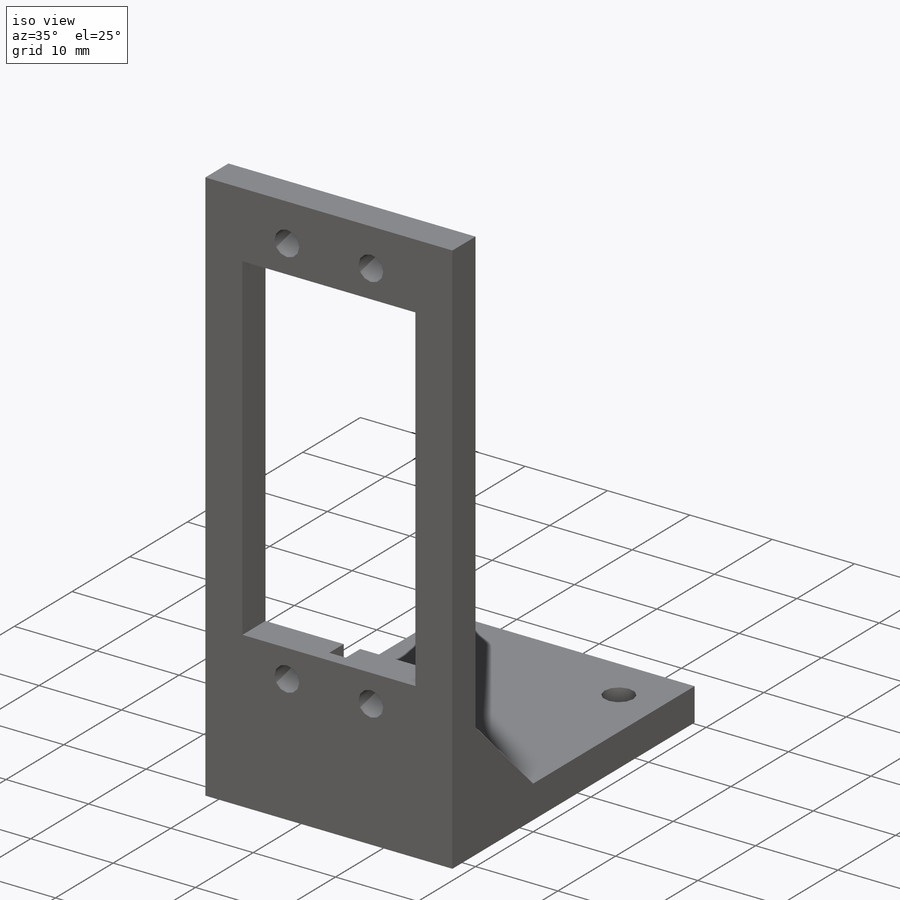
[diagram: iso view]
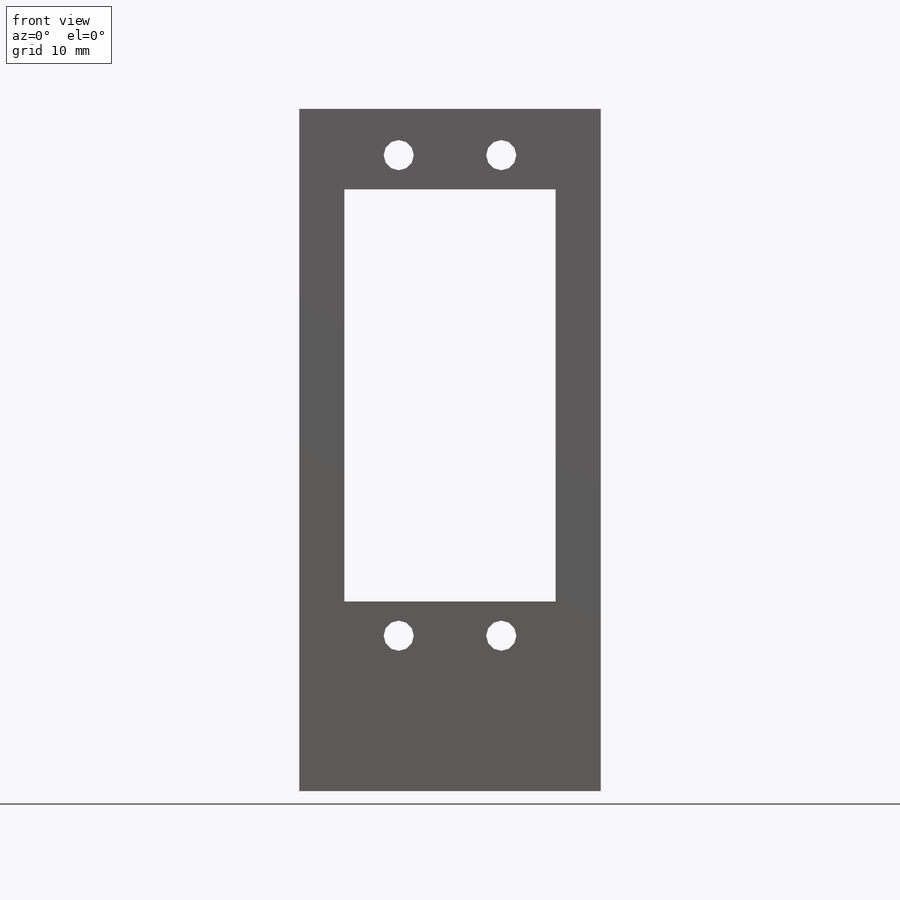
[diagram: front view]
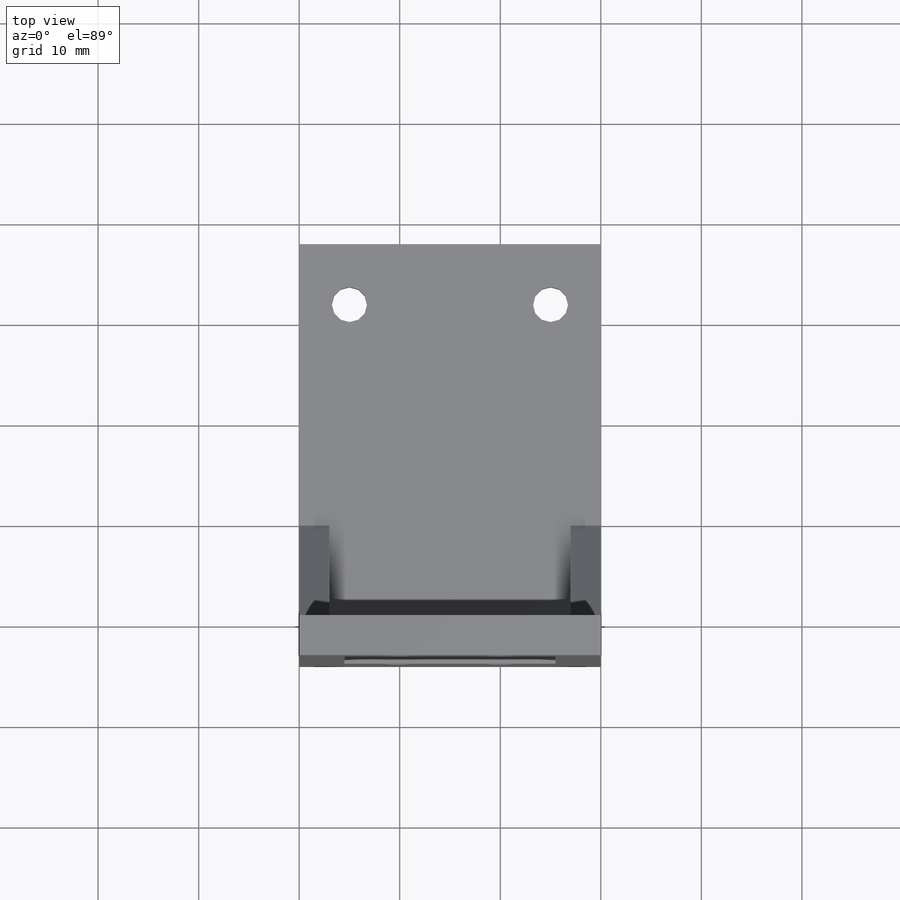
[diagram: top view]
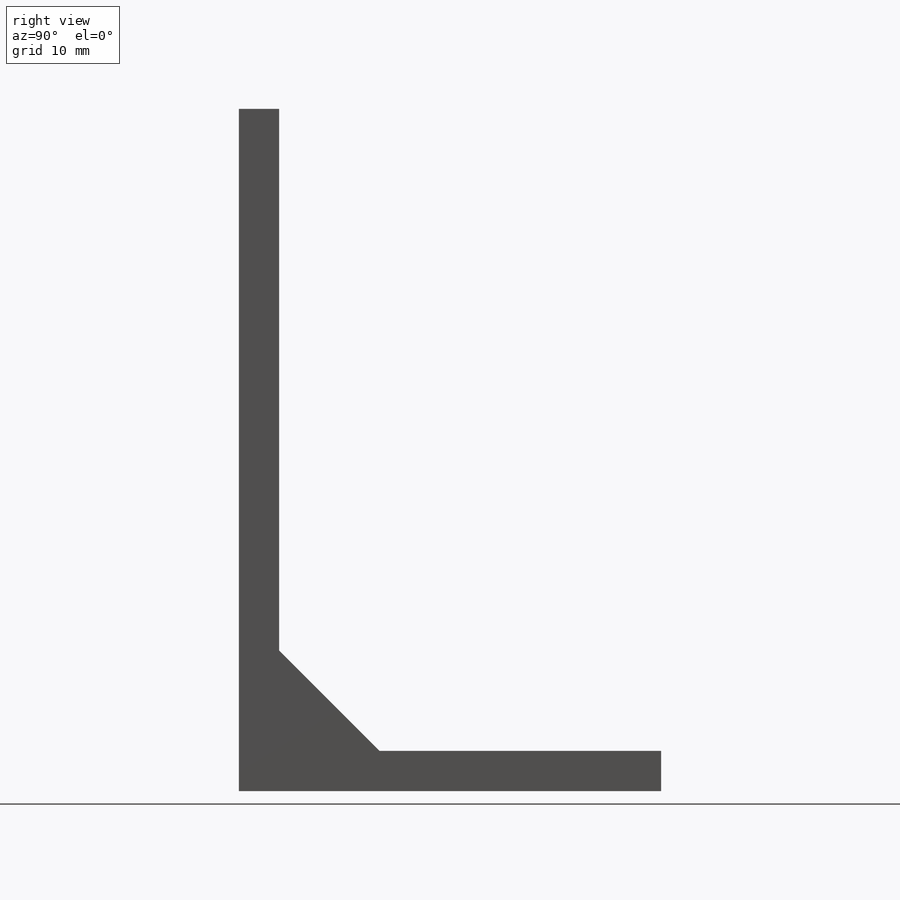
[diagram: right view]
SOLIDWORKS PART (.sldprt)
format: sldprt  version: not decoded by parser v0  size: 245,248 bytes
history: native  units: mm
features: sketch x6, extrude x4, plane x3, cut_extrude x2, material x1 (+9 scaffold rows collapsed)
feature tree (25):
  scaffold x9  (default folders/planes/origin — collapsed)
  material  "材質 <未指定>"
  plane  "前基準面"
  plane  "上基準面"
  plane  "右基準面"
  sketch  "草圖1"  dims[c1.D6=3.0mm c1.D7=3.0mm c1.D8=3.0mm c1.D1=30.0mm c1.D2=21.0mm c1.D3=10.5mm c1.D4=41.0mm c1.D5=8.0mm c2.D7=5.1mm c2.D8=23.9mm]
  extrude  "填料-伸長1"  Depth=4mm
  sketch  "草圖2"  dims[D1=1.0mm D2=1.0mm D3=1.0mm D4=1.0mm D5=3.0mm D6=3.0mm]
  cut_extrude  "除料-伸長1"  Depth=2.5mm
  sketch  "草圖3"  dims[D1=42.0mm]
  extrude  "填料-伸長2"  Depth=4mm
  sketch  "草圖4"  dims[c1.D1=~8.453317mm c1.D2=3.5mm c1.D3=3.5mm c2.D1=10.0mm c2.D3=32.0mm]
  cut_extrude  "除料-伸長2"  [1 undecoded]
  sketch  "草圖5"  dims[D1=10.0mm D2=10.0mm]
  extrude  "填料-伸長3"  Depth=3mm
  sketch  "草圖6"
  extrude  "填料-伸長4"  Depth=3mm
decode coverage: 10 of 12 modeling features carry decoded parameters
note: ~ marks probable driven/reference dimensions
note: 1 parameter value undecoded
note: suppression state not decoded; provenance and decode notes live in map.json
